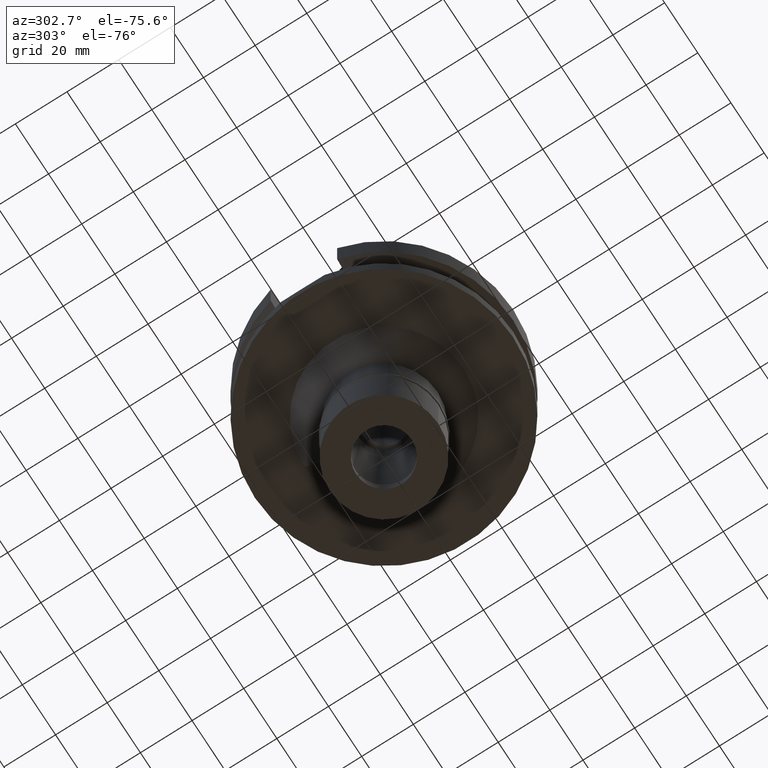
[diagram: clean part render]
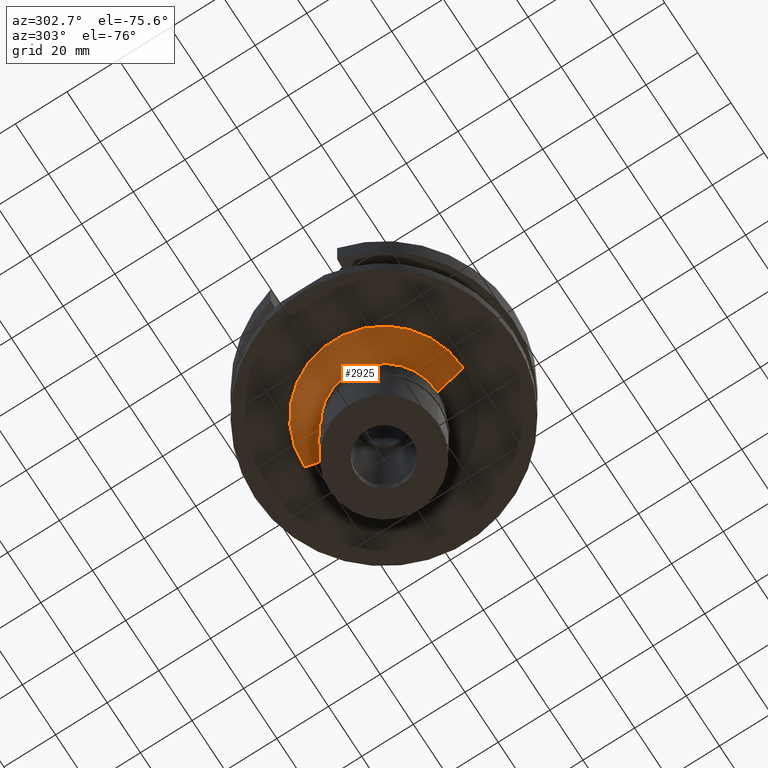
[diagram: same view with one face highlighted and labeled with its STEP entity id]
A machine part, auxiliary view. The second image highlights one B-rep face of the part: STEP entity #2925.
In plain terms, the highlighted conical surface has half-angle 45 deg.
Its self-contained STEP definition (entity closure, byte-faithful):
#121 = CIRCLE ( 'NONE', #2175, 20.75000000000000000 ) ;
#271 = VECTOR ( 'NONE', #1934, 1000.000000000000114 ) ;
#340 = ORIENTED_EDGE ( 'NONE', *, *, #2338, .T. ) ;
#355 = CARTESIAN_POINT ( 'NONE',  ( 0.0000000000000000000, 0.0000000000000000000, -43.00000000000000000 ) ) ;
#461 = VERTEX_POINT ( 'NONE', #699 ) ;
#463 = EDGE_CURVE ( 'NONE', #1818, #2388, #121, .T. ) ;
#587 = CIRCLE ( 'NONE', #2324, 30.75000000000000000 ) ;
#603 = ORIENTED_EDGE ( 'NONE', *, *, #463, .F. ) ;
#699 = CARTESIAN_POINT ( 'NONE',  ( 0.0000000000000000000, 30.75000000000000000, -38.00000000000000000 ) ) ;
#775 = CARTESIAN_POINT ( 'NONE',  ( 0.0000000000000000000, -20.75000000000000000, -48.00000000000000000 ) ) ;
#780 = VERTEX_POINT ( 'NONE', #834 ) ;
#834 = CARTESIAN_POINT ( 'NONE',  ( 0.0000000000000000000, -30.75000000000000000, -38.00000000000000000 ) ) ;
#913 = CARTESIAN_POINT ( 'NONE',  ( 0.0000000000000000000, 30.75000000000000000, -38.00000000000000000 ) ) ;
#1127 = EDGE_LOOP ( 'NONE', ( #603, #2796, #340, #2519 ) ) ;
#1331 = DIRECTION ( 'NONE',  ( 0.0000000000000000000, 1.000000000000000000, 0.0000000000000000000 ) ) ;
#1369 = CARTESIAN_POINT ( 'NONE',  ( 0.0000000000000000000, 0.0000000000000000000, -38.00000000000000000 ) ) ;
#1524 = DIRECTION ( 'NONE',  ( 0.0000000000000000000, 0.0000000000000000000, -1.000000000000000000 ) ) ;
#1564 = FACE_OUTER_BOUND ( 'NONE', #1127, .T. ) ;
#1620 = DIRECTION ( 'NONE',  ( 0.0000000000000000000, 0.0000000000000000000, 1.000000000000000000 ) ) ;
#1660 = LINE ( 'NONE', #913, #2637 ) ;
#1818 = VERTEX_POINT ( 'NONE', #775 ) ;
#1891 = EDGE_CURVE ( 'NONE', #461, #2388, #1660, .T. ) ;
#1917 = CARTESIAN_POINT ( 'NONE',  ( 0.0000000000000000000, 0.0000000000000000000, -48.00000000000000000 ) ) ;
#1934 = DIRECTION ( 'NONE',  ( 0.0000000000000000000, 0.7071067811865474617, -0.7071067811865474617 ) ) ;
#2175 = AXIS2_PLACEMENT_3D ( 'NONE', #1917, #2850, #2184 ) ;
#2184 = DIRECTION ( 'NONE',  ( 0.0000000000000000000, -1.000000000000000000, 0.0000000000000000000 ) ) ;
#2313 = AXIS2_PLACEMENT_3D ( 'NONE', #355, #1620, #1331 ) ;
#2324 = AXIS2_PLACEMENT_3D ( 'NONE', #1369, #1524, #2759 ) ;
#2338 = EDGE_CURVE ( 'NONE', #780, #461, #587, .T. ) ;
#2388 = VERTEX_POINT ( 'NONE', #2775 ) ;
#2395 = CARTESIAN_POINT ( 'NONE',  ( 0.0000000000000000000, -30.75000000000000000, -38.00000000000000000 ) ) ;
#2409 = CONICAL_SURFACE ( 'NONE', #2313, 25.75000000000000000, 0.7853981633972997312 ) ;
#2480 = EDGE_CURVE ( 'NONE', #780, #1818, #3049, .T. ) ;
#2519 = ORIENTED_EDGE ( 'NONE', *, *, #1891, .T. ) ;
#2575 = DIRECTION ( 'NONE',  ( 0.0000000000000000000, -0.7071067811865474617, -0.7071067811865474617 ) ) ;
#2637 = VECTOR ( 'NONE', #2575, 1000.000000000000114 ) ;
#2759 = DIRECTION ( 'NONE',  ( 0.0000000000000000000, -1.000000000000000000, 0.0000000000000000000 ) ) ;
#2775 = CARTESIAN_POINT ( 'NONE',  ( 0.0000000000000000000, 20.75000000000000000, -48.00000000000000000 ) ) ;
#2796 = ORIENTED_EDGE ( 'NONE', *, *, #2480, .F. ) ;
#2850 = DIRECTION ( 'NONE',  ( 0.0000000000000000000, 0.0000000000000000000, -1.000000000000000000 ) ) ;
#2925 = ADVANCED_FACE ( 'NONE', ( #1564 ), #2409, .T. ) ;
#3049 = LINE ( 'NONE', #2395, #271 ) ;